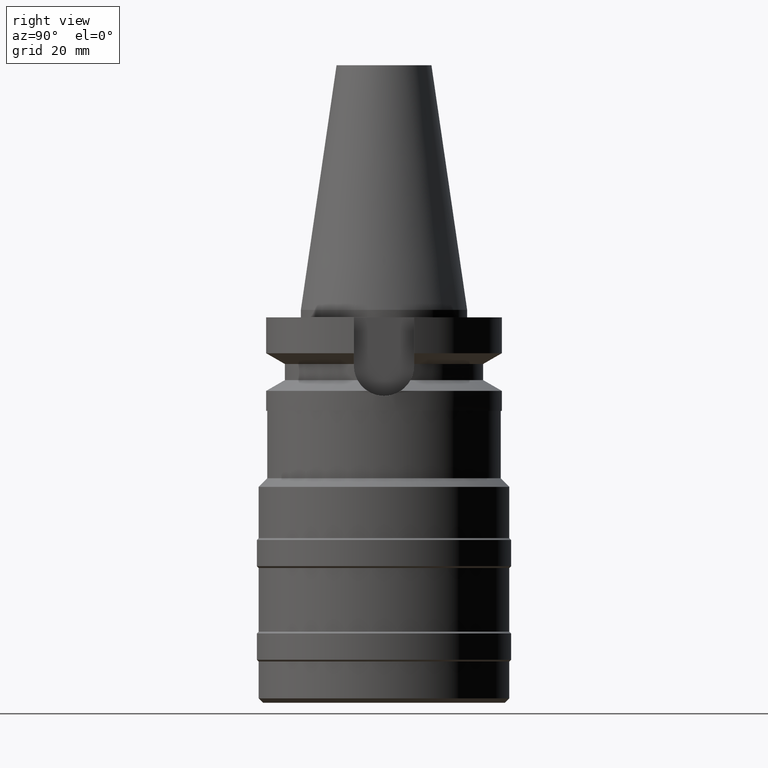
[diagram: clean part render]
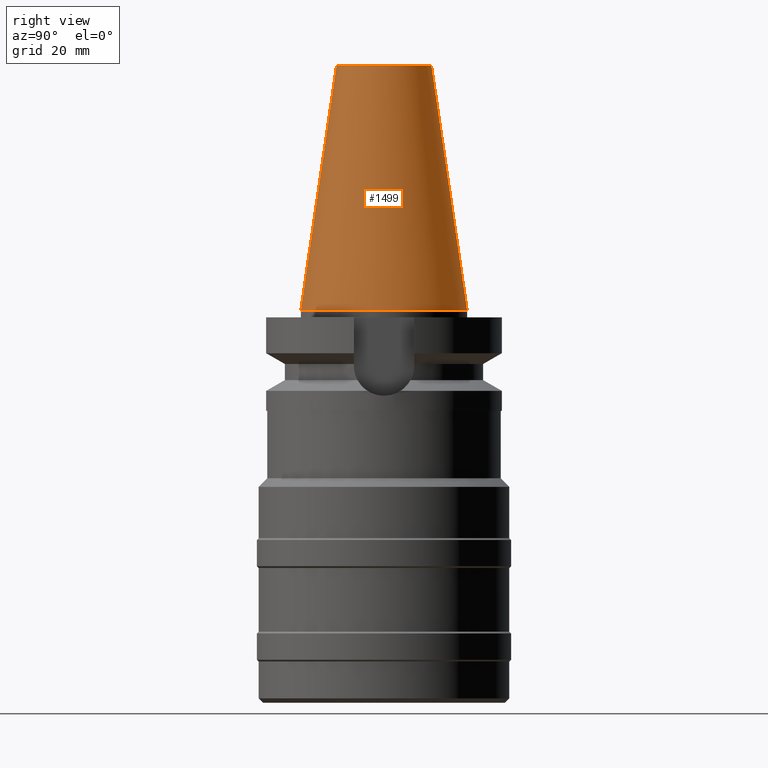
[diagram: same view with one face highlighted and labeled with its STEP entity id]
A machine part, right view. The second image highlights one B-rep face of the part: STEP entity #1499.
In plain terms, the highlighted conical surface has half-angle 8.297 deg.
Its self-contained STEP definition (entity closure, byte-faithful):
#26=CARTESIAN_POINT('',(0.E0,1.625106302469E-14,6.54E1));
#27=DIRECTION('',(0.E0,0.E0,-1.E0));
#28=DIRECTION('',(0.E0,1.E0,0.E0));
#29=AXIS2_PLACEMENT_3D('',#26,#27,#28);
#50=DIRECTION('',(0.E0,-1.443043893540E-1,-9.895333461856E-1));
#51=VECTOR('',#50,6.609175956738E1);
#52=CARTESIAN_POINT('',(0.E0,-1.268766899430E1,6.54E1));
#53=LINE('',#52,#51);
#65=DIRECTION('',(0.E0,1.443043893540E-1,-9.895333461856E-1));
#66=VECTOR('',#65,6.609175956738E1);
#67=CARTESIAN_POINT('',(0.E0,1.268766899430E1,6.54E1));
#68=LINE('',#67,#66);
#72=CARTESIAN_POINT('',(0.E0,1.625106302469E-14,2.842170943040E-14));
#73=DIRECTION('',(0.E0,0.E0,-1.E0));
#74=DIRECTION('',(0.E0,1.E0,0.E0));
#75=AXIS2_PLACEMENT_3D('',#72,#73,#74);
#1265=CARTESIAN_POINT('',(0.E0,-1.268766899430E1,6.54E1));
#1266=CARTESIAN_POINT('',(0.E0,1.268766899430E1,6.54E1));
#1267=VERTEX_POINT('',#1265);
#1268=VERTEX_POINT('',#1266);
#1442=CARTESIAN_POINT('',(0.E0,2.2225E1,6.394884621841E-14));
#1443=VERTEX_POINT('',#1442);
#1444=CARTESIAN_POINT('',(0.E0,-2.2225E1,6.394884621841E-14));
#1445=VERTEX_POINT('',#1444);
#1487=CARTESIAN_POINT('',(0.E0,1.625106302469E-14,3.27E1));
#1488=DIRECTION('',(0.E0,0.E0,-1.E0));
#1489=DIRECTION('',(0.E0,-1.E0,0.E0));
#1490=AXIS2_PLACEMENT_3D('',#1487,#1488,#1489);
#1491=CONICAL_SURFACE('',#1490,1.745633449715E1,8.297E0);
#1492=ORIENTED_EDGE('',*,*,#1477,.T.);
#1494=ORIENTED_EDGE('',*,*,#1493,.T.);
#1495=ORIENTED_EDGE('',*,*,#1480,.F.);
#1496=ORIENTED_EDGE('',*,*,#1461,.F.);
#1497=EDGE_LOOP('',(#1492,#1494,#1495,#1496));
#1498=FACE_OUTER_BOUND('',#1497,.F.);
#30=CIRCLE('',#29,1.268766899430E1);
#76=CIRCLE('',#75,2.2225E1);
#1461=EDGE_CURVE('',#1268,#1267,#30,.T.);
#1477=EDGE_CURVE('',#1268,#1443,#68,.T.);
#1480=EDGE_CURVE('',#1267,#1445,#53,.T.);
#1493=EDGE_CURVE('',#1443,#1445,#76,.T.);
#1499=ADVANCED_FACE('',(#1498),#1491,.T.);